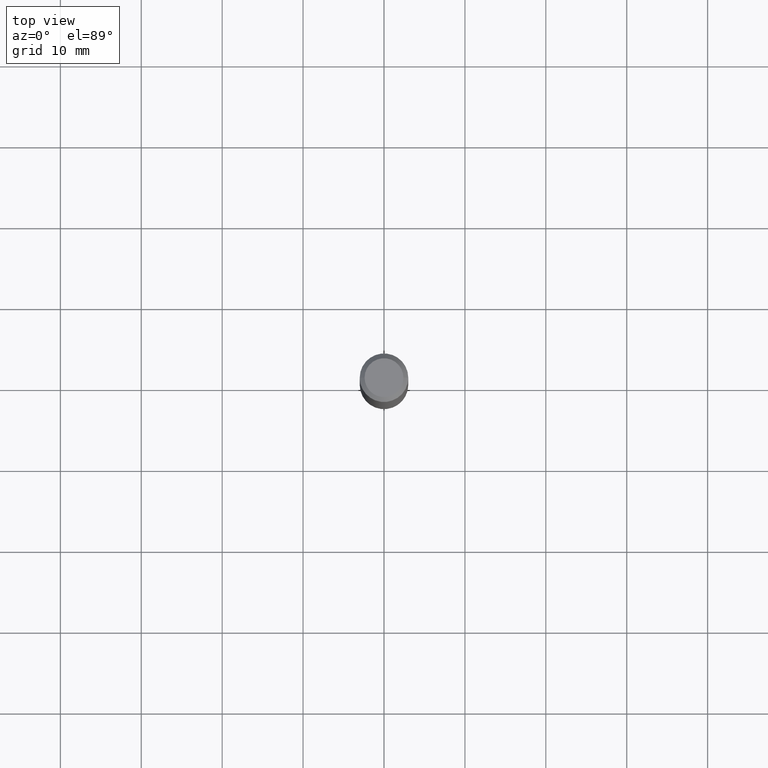
[diagram: clean part render]
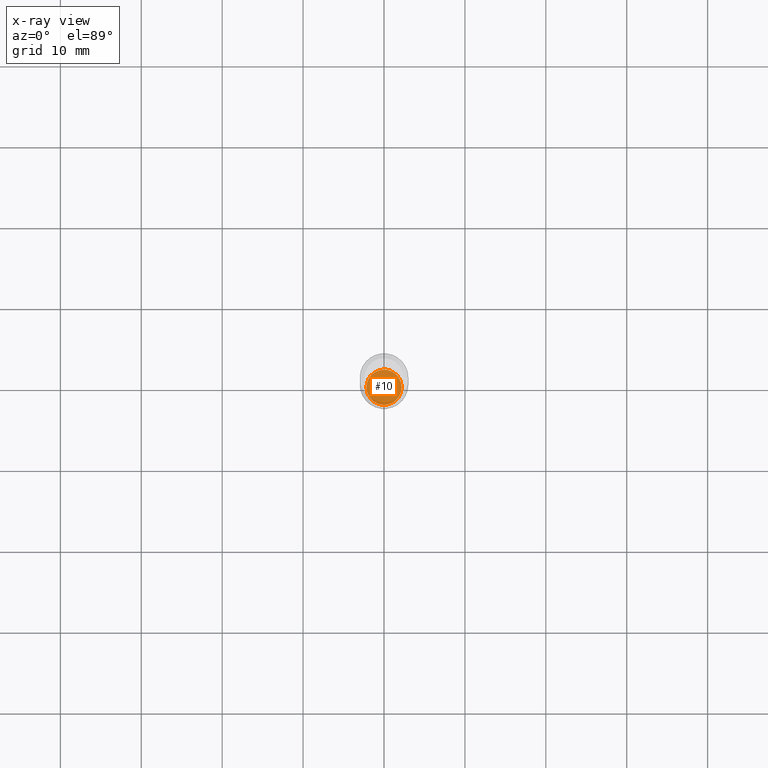
[diagram: x-ray — body ghosted, one internal face saturated and labeled with its STEP entity id]
A machine part, top view, then the same camera in x-ray: the body is ghosted and one INTERNAL B-rep face — a face not visible from any outside direction — is saturated and labeled: STEP entity #10.
In plain terms, the highlighted planar face has unit normal (-0, 0, 1).
Its self-contained STEP definition (entity closure, byte-faithful):
#10 = ADVANCED_FACE ( 'NONE', ( #279 ), #32, .F. ) ;
#26 = AXIS2_PLACEMENT_3D ( 'NONE', #518, #356, #509 ) ;
#32 = PLANE ( 'NONE',  #500 ) ;
#34 = VERTEX_POINT ( 'NONE', #286 ) ;
#38 = DIRECTION ( 'NONE',  ( 1.000000000000000000, -6.982962677686265922E-15, 4.876176775795935793E-29 ) ) ;
#53 = EDGE_CURVE ( 'NONE', #34, #456, #55, .T. ) ;
#55 = CIRCLE ( 'NONE', #336, 0.08544999999999998430 ) ;
#75 = DIRECTION ( 'NONE',  ( 1.000000000000000000, -6.982962677686278543E-15, 0.000000000000000000 ) ) ;
#194 = EDGE_LOOP ( 'NONE', ( #273, #270 ) ) ;
#258 = EDGE_CURVE ( 'NONE', #456, #34, #474, .T. ) ;
#270 = ORIENTED_EDGE ( 'NONE', *, *, #53, .F. ) ;
#273 = ORIENTED_EDGE ( 'NONE', *, *, #258, .F. ) ;
#279 = FACE_OUTER_BOUND ( 'NONE', #194, .T. ) ;
#286 = CARTESIAN_POINT ( 'NONE',  ( -0.08544999999999998430, -8.814747583058182937E-15, -2.699299999999999589 ) ) ;
#288 = CARTESIAN_POINT ( 'NONE',  ( 6.601053948535538665E-29, -9.424555577939300720E-15, -2.699299999999999589 ) ) ;
#319 = CARTESIAN_POINT ( 'NONE',  ( 6.601053948535538665E-29, -9.424555577939300720E-15, -2.699299999999999589 ) ) ;
#336 = AXIS2_PLACEMENT_3D ( 'NONE', #288, #465, #75 ) ;
#356 = DIRECTION ( 'NONE',  ( -2.445468806185136597E-29, 3.491481338843145583E-15, 1.000000000000000000 ) ) ;
#435 = DIRECTION ( 'NONE',  ( -2.438088387897960049E-29, 3.491481338843145188E-15, 1.000000000000000000 ) ) ;
#456 = VERTEX_POINT ( 'NONE', #489 ) ;
#465 = DIRECTION ( 'NONE',  ( -2.445468806185136597E-29, 3.491481338843145583E-15, 1.000000000000000000 ) ) ;
#474 = CIRCLE ( 'NONE', #26, 0.08544999999999998430 ) ;
#489 = CARTESIAN_POINT ( 'NONE',  ( 0.08544999999999998430, -1.002124973874759352E-14, -2.699299999999999589 ) ) ;
#500 = AXIS2_PLACEMENT_3D ( 'NONE', #319, #435, #38 ) ;
#509 = DIRECTION ( 'NONE',  ( 1.000000000000000000, -6.982962677686278543E-15, 0.000000000000000000 ) ) ;
#518 = CARTESIAN_POINT ( 'NONE',  ( 6.601053948535538665E-29, -9.424555577939300720E-15, -2.699299999999999589 ) ) ;